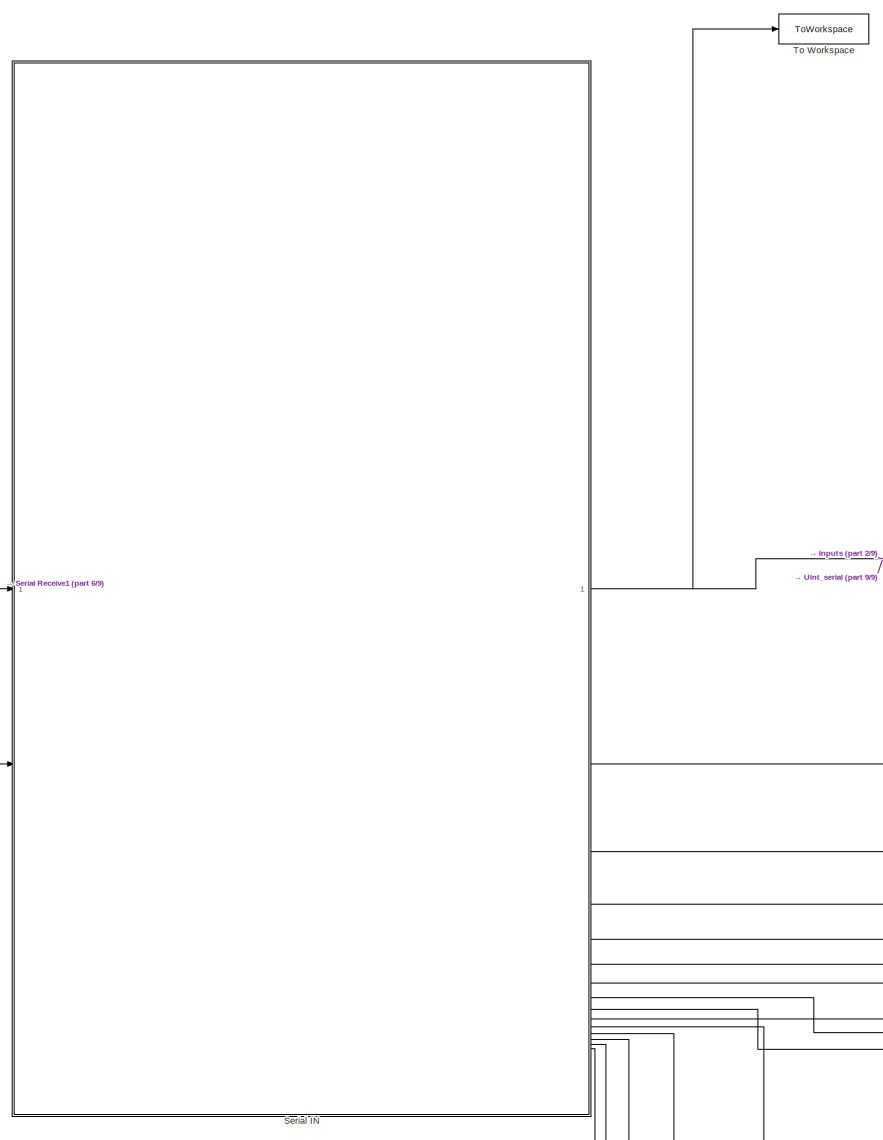
[diagram: root canvas - part 1/9, top left region]
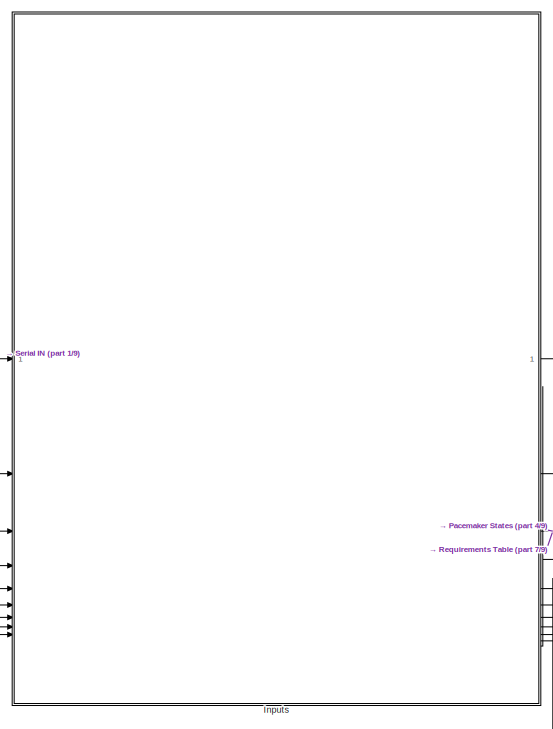
[diagram: root canvas - part 2/9, top center region]
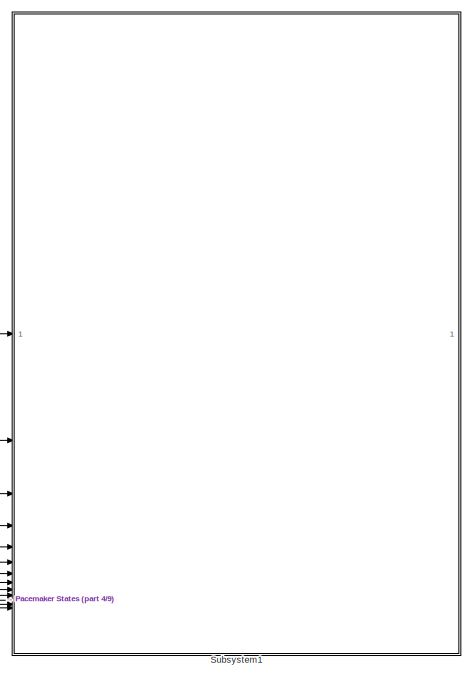
[diagram: root canvas - part 3/9, top right region]
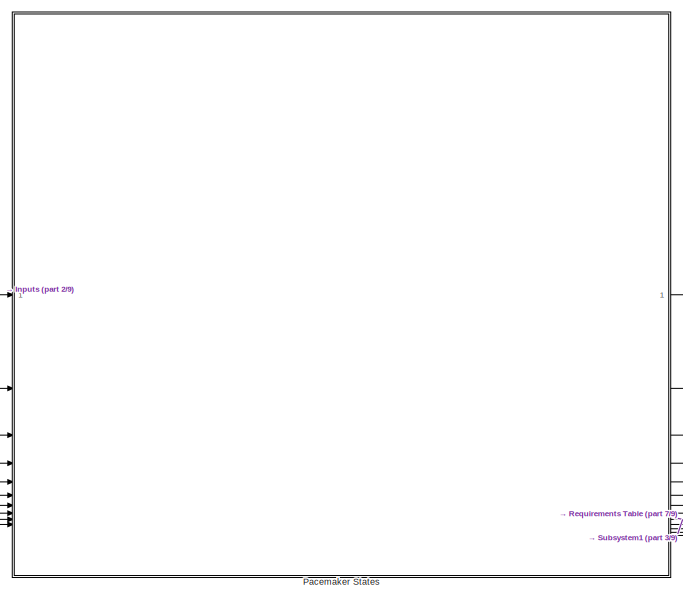
[diagram: root canvas - part 4/9, top center region]
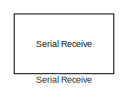
[diagram: root canvas - part 5/9, top left region]
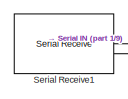
[diagram: root canvas - part 6/9, top left region]
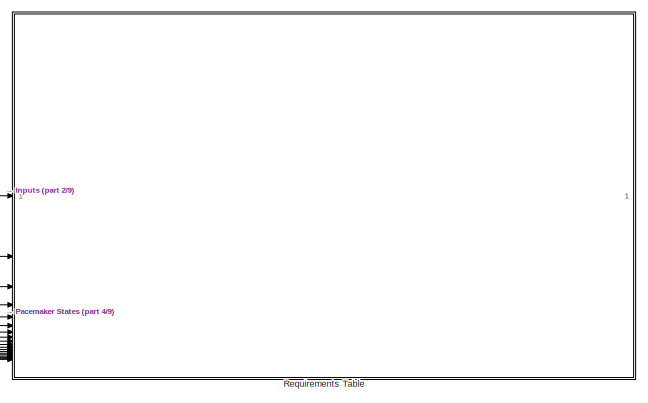
[diagram: root canvas - part 7/9, middle right region]
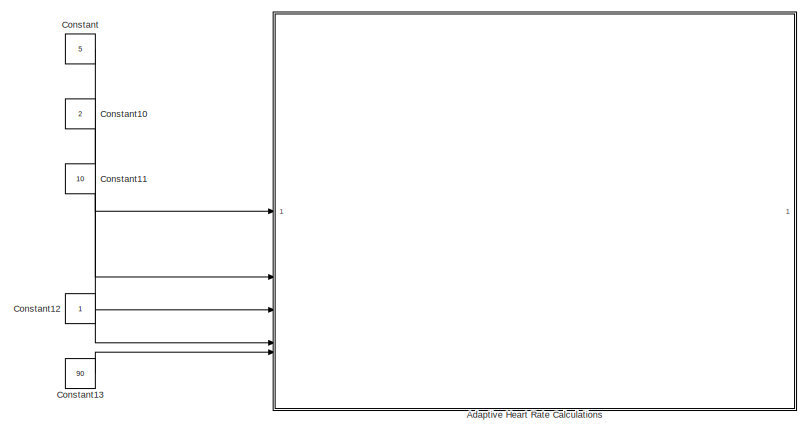
[diagram: root canvas - part 8/9, bottom center region]
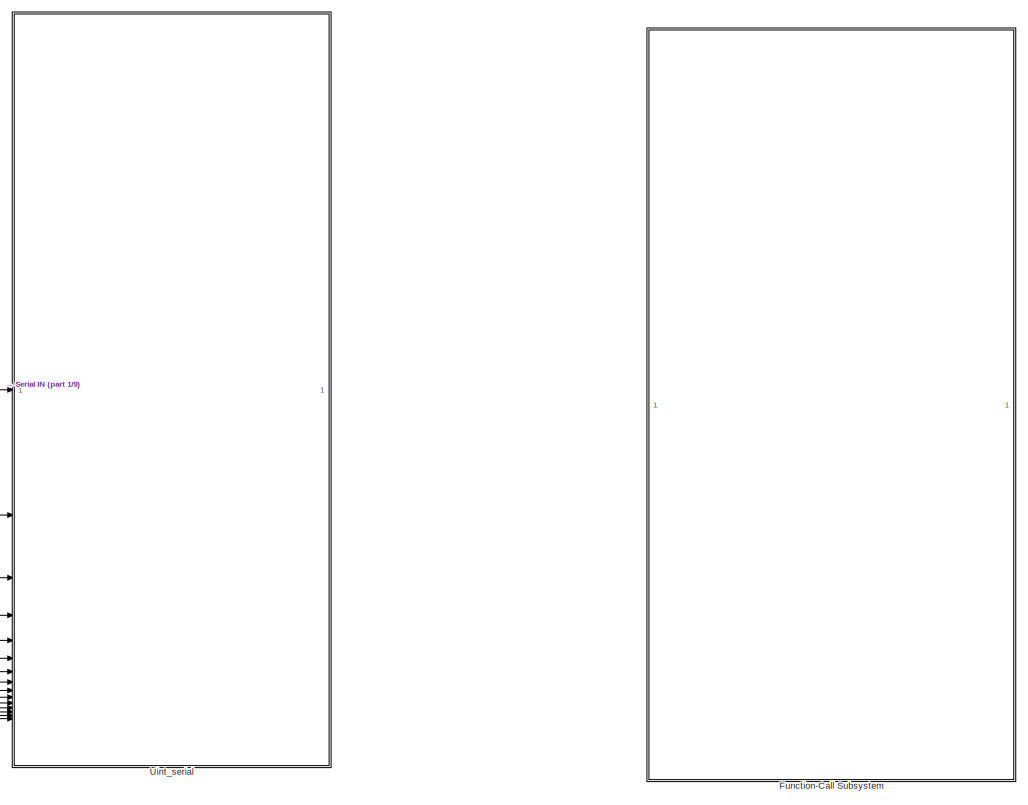
[diagram: root canvas - part 9/9, bottom center region]
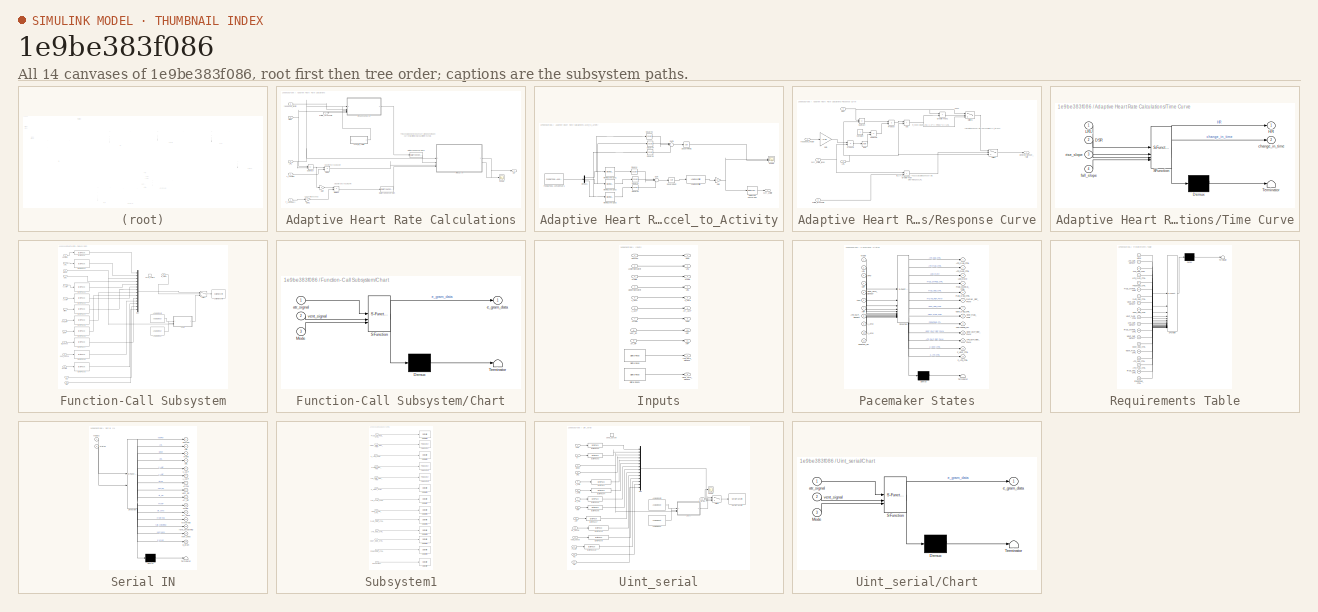
[diagram: thumbnail index - all 14 canvases of the model, root first then tree order]
MODEL slx_1e9be383f086
KIND model
CONFIG AbsTol = auto
CONFIG EnableMultiTasking = on
CONFIG FixedStep = 1e-3
CONFIG MaxStep = auto
CONFIG MinStep = auto
CONFIG RelTol = 1e-3
CONFIG SampleTimeConstraint = Unconstrained
CONFIG SolverName = FixedStepAuto
CONFIG StartTime = 0.0
CONFIG StopTime = 100
BLOCK [SubSystem] Adaptive Heart Rate Calculations
  Commented = on
BLOCK [SubSystem] Adaptive Heart Rate Calculations/Accel_to_Activity
BLOCK [DataTypeConversion] Adaptive Heart Rate Calculations/Accel_to_Activity/Data Type Conversion
  OutDataTypeStr = int16
  RndMeth = Floor
  SaturateOnIntegerOverflow = off
BLOCK [Demux] Adaptive Heart Rate Calculations/Accel_to_Activity/Demux1
  Outputs = 3
BLOCK [Reference] Adaptive Heart Rate Calculations/Accel_to_Activity/FXOS8700 6-Axes Sensor1  REF=frdmk64flib/FXOS8700 6-Axes Sensor
  SourceBlock = frdmk64flib/FXOS8700 6-Axes Sensor
  SourceType = freedomk64f.fxos8700
BLOCK [Gain] Adaptive Heart Rate Calculations/Accel_to_Activity/Gain
  Gain = 10
BLOCK [Reference] Adaptive Heart Rate Calculations/Accel_to_Activity/Lowpass Filter  REF=dspfdesign/Lowpass Filter
  SourceBlock = dspfdesign/Lowpass Filter
  SourceType = dsp.simulink.LowpassFilter
BLOCK [Reference] Adaptive Heart Rate Calculations/Accel_to_Activity/Moving Average1  REF=dspstat3/Moving
Average
  SourceBlock = dspstat3/Moving\nAverage
  SourceType = dsp.simulink.MovingAverage
BLOCK [Reference] Adaptive Heart Rate Calculations/Accel_to_Activity/Moving Average2  REF=dspstat3/Moving
Average
  SourceBlock = dspstat3/Moving\nAverage
  SourceType = dsp.simulink.MovingAverage
BLOCK [Reference] Adaptive Heart Rate Calculations/Accel_to_Activity/Moving Average3  REF=dspstat3/Moving
Average
  SourceBlock = dspstat3/Moving\nAverage
  SourceType = dsp.simulink.MovingAverage
BLOCK [Scope] Adaptive Heart Rate Calculations/Accel_to_Activity/Scope
  Floating = off
  NumInputPorts = 2
  ScopeSpecificationString = Simulink.scopes.TimeScopeBlockCfg('CurrentConfiguration', extmgr.ConfigurationSet(extmgr.Configuration('Core','General UI',true),extmgr.Configuration('Core','Source UI',true),extmgr.Configuration('Sources','WiredSimulink',true),extmgr.Configuration('Visuals','Time Domain',true,'SerializedDisplays',{struct('MinYLimReal','-1.33005','MaxYLimReal','14.10526','YLabelReal','','MinYLimMag','0.00000','Max...<+1362ch>
BLOCK [Math] Adaptive Heart Rate Calculations/Accel_to_Activity/Square
  Operator = square
BLOCK [Sqrt] Adaptive Heart Rate Calculations/Accel_to_Activity/Square Root
BLOCK [Sqrt] Adaptive Heart Rate Calculations/Accel_to_Activity/Square Root1
BLOCK [Math] Adaptive Heart Rate Calculations/Accel_to_Activity/Square1
  Operator = square
BLOCK [Math] Adaptive Heart Rate Calculations/Accel_to_Activity/Square2
  Operator = square
BLOCK [Math] Adaptive Heart Rate Calculations/Accel_to_Activity/Square3
  Operator = square
BLOCK [Math] Adaptive Heart Rate Calculations/Accel_to_Activity/Square4
  Operator = square
BLOCK [Math] Adaptive Heart Rate Calculations/Accel_to_Activity/Square5
  Operator = square
BLOCK [Sum] Adaptive Heart Rate Calculations/Accel_to_Activity/Sum
  Inputs = |+++
BLOCK [Sum] Adaptive Heart Rate Calculations/Accel_to_Activity/Sum1
  Inputs = |+++
BLOCK [Outport] Adaptive Heart Rate Calculations/Accel_to_Activity/curr_activity
  VarSizeSig = No
BLOCK [DataTypeConversion] Adaptive Heart Rate Calculations/Data Type Conversion
  OutDataTypeStr = uint16
  RndMeth = Floor
  SaturateOnIntegerOverflow = off
BLOCK [DataTypeConversion] Adaptive Heart Rate Calculations/Data Type Conversion1
  OutDataTypeStr = uint16
  RndMeth = Floor
  SaturateOnIntegerOverflow = off
BLOCK [Product] Adaptive Heart Rate Calculations/Divide
  Inputs = */
BLOCK [Product] Adaptive Heart Rate Calculations/Divide1
  Inputs = */
BLOCK [Gain] Adaptive Heart Rate Calculations/Gain
  Gain = -1
BLOCK [Gain] Adaptive Heart Rate Calculations/Gain1
  Gain = 60
BLOCK [Outport] Adaptive Heart Rate Calculations/HR
  OutDataTypeStr = uint16
  VarSizeSig = No
BLOCK [Inport] Adaptive Heart Rate Calculations/LRL
  OutDataTypeStr = uint16
  Port = 4
BLOCK [Inport] Adaptive Heart Rate Calculations/MSR
  Port = 6
BLOCK [SubSystem] Adaptive Heart Rate Calculations/Response Curve
BLOCK [Sum] Adaptive Heart Rate Calculations/Response Curve/Add
  IconShape = rectangular
BLOCK [Constant] Adaptive Heart Rate Calculations/Response Curve/Constant
BLOCK [Math] Adaptive Heart Rate Calculations/Response Curve/Exp
BLOCK [Gain] Adaptive Heart Rate Calculations/Response Curve/Gain
  Gain = -1/30
BLOCK [RelationalOperator] Adaptive Heart Rate Calculations/Response Curve/GreaterThan
  InputSameDT = off
  Operator = >
  OutDataTypeStr = boolean
  RndMeth = Simplest
BLOCK [RelationalOperator] Adaptive Heart Rate Calculations/Response Curve/GreaterThan1
  InputSameDT = off
  Operator = >
  OutDataTypeStr = boolean
  RndMeth = Simplest
BLOCK [Inport] Adaptive Heart Rate Calculations/Response Curve/LRL
  OutDataTypeStr = uint16
BLOCK [Inport] Adaptive Heart Rate Calculations/Response Curve/MSR
  OutDataTypeStr = int16
  Port = 4
  VarSizeSig = No
BLOCK [Product] Adaptive Heart Rate Calculations/Response Curve/Product
BLOCK [Product] Adaptive Heart Rate Calculations/Response Curve/Product1
BLOCK [Sum] Adaptive Heart Rate Calculations/Response Curve/Subtract
  IconShape = rectangular
  Inputs = +-
BLOCK [Sum] Adaptive Heart Rate Calculations/Response Curve/Subtract1
  IconShape = rectangular
  Inputs = +-
BLOCK [Switch] Adaptive Heart Rate Calculations/Response Curve/Switch
  Criteria = u2 > Threshold
  InputSameDT = off
  SaturateOnIntegerOverflow = off
BLOCK [Switch] Adaptive Heart Rate Calculations/Response Curve/Switch1
  Criteria = u2 > Threshold
  InputSameDT = off
  SaturateOnIntegerOverflow = off
BLOCK [Inport] Adaptive Heart Rate Calculations/Response Curve/activity_threshold
  OutDataTypeStr = int16
  Port = 5
BLOCK [Inport] Adaptive Heart Rate Calculations/Response Curve/curr_activity_level
  OutDataTypeStr = int16
  Port = 3
  VarSizeSig = No
BLOCK [Outport] Adaptive Heart Rate Calculations/Response Curve/desired_Sensor_rate
  VarSizeSig = No
BLOCK [Inport] Adaptive Heart Rate Calculations/Response Curve/response_Factor
  Port = 2
BLOCK [Scope] Adaptive Heart Rate Calculations/Scope
  Floating = off
  NumInputPorts = 1
  ScopeSpecificationString = Simulink.scopes.TimeScopeBlockCfg('CurrentConfiguration', extmgr.ConfigurationSet(extmgr.Configuration('Core','General UI',true),extmgr.Configuration('Core','Source UI',true),extmgr.Configuration('Sources','WiredSimulink',true,'DataLoggingVariableName','ScopeData1'),extmgr.Configuration('Visuals','Time Domain',true),extmgr.Configuration('Tools','Plot Navigation',true),extmgr.Configuration('Tools',...<+40ch>
BLOCK [Sum] Adaptive Heart Rate Calculations/Subtract
  IconShape = rectangular
  Inputs = +-
BLOCK [Inport] Adaptive Heart Rate Calculations/T_reaction
  OutDataTypeStr = uint16
  Port = 3
  VarSizeSig = No
BLOCK [Inport] Adaptive Heart Rate Calculations/T_recovery
  Port = 2
BLOCK [SubSystem] Adaptive Heart Rate Calculations/Time Curve
  ErrorFcn = Stateflow.Translate.translate
  PermitHierarchicalResolution = ExplicitOnly
  SFBlockType = Chart
  TreatAsAtomicUnit = on
BLOCK [Demux] Adaptive Heart Rate Calculations/Time Curve/ Demux 
  Outputs = 1
BLOCK [S-Function] Adaptive Heart Rate Calculations/Time Curve/ SFunction 
  EnableBusSupport = on
  FunctionName = sf_sfun
  PortCounts = [4 3]
  SFcnIsStateOwnerBlock = off
  SFunctionDeploymentMode = off
  Tag = Stateflow S-Function 2
BLOCK [Terminator] Adaptive Heart Rate Calculations/Time Curve/ Terminator 
BLOCK [Inport] Adaptive Heart Rate Calculations/Time Curve/DSR
  Port = 2
BLOCK [Outport] Adaptive Heart Rate Calculations/Time Curve/HR
BLOCK [Inport] Adaptive Heart Rate Calculations/Time Curve/LRL
BLOCK [Outport] Adaptive Heart Rate Calculations/Time Curve/change_in_time
  Port = 2
BLOCK [Inport] Adaptive Heart Rate Calculations/Time Curve/fall_slope
  Port = 4
BLOCK [Inport] Adaptive Heart Rate Calculations/Time Curve/rise_slope
  Port = 3
BLOCK [Inport] Adaptive Heart Rate Calculations/activity_Threshold
BLOCK [Inport] Adaptive Heart Rate Calculations/response_factor
  Port = 5
BLOCK [Constant] Constant
  Commented = on
  OutDataTypeStr = int16
  Value = 5
BLOCK [Constant] Constant10
  Commented = on
  OutDataTypeStr = int16
  Value = 2
BLOCK [Constant] Constant11
  Commented = on
  OutDataTypeStr = uint16
  Value = 10
BLOCK [Constant] Constant12
  Commented = on
  OutDataTypeStr = double
BLOCK [Constant] Constant13
  Commented = on
  OutDataTypeStr = int16
  Value = 90
BLOCK [SubSystem] Function-Call Subsystem
  Commented = on
  TreatAsAtomicUnit = on
BLOCK [Inport] Function-Call Subsystem/A_AMP
  Port = 6
BLOCK [Reference] Function-Call Subsystem/Analog Input  REF=frdmk64flib/Analog Input
  SourceBlock = frdmk64flib/Analog Input
  SourceType = freedomk64f.AnalogInput
BLOCK [Reference] Function-Call Subsystem/Analog Input1  REF=frdmk64flib/Analog Input
  SourceBlock = frdmk64flib/Analog Input
  SourceType = freedomk64f.AnalogInput
BLOCK [Inport] Function-Call Subsystem/AtrPW
  Port = 7
BLOCK [Inport] Function-Call Subsystem/Atr_RP
  Port = 9
BLOCK [Reference] Function-Call Subsystem/Byte Pack  REF=etargetslib/Byte Pack
  LibrarySourceBlock = embeddedtargetslib/Host Communication/Byte Pack
  SourceBlock = etargetslib/Byte Pack
  SourceType = Byte pack
BLOCK [Reference] Function-Call Subsystem/Byte Pack1  REF=etargetslib/Byte Pack
  LibrarySourceBlock = embeddedtargetslib/Host Communication/Byte Pack
  SourceBlock = etargetslib/Byte Pack
  SourceType = Byte pack
BLOCK [Reference] Function-Call Subsystem/Byte Pack2  REF=etargetslib/Byte Pack
  LibrarySourceBlock = embeddedtargetslib/Host Communication/Byte Pack
  SourceBlock = etargetslib/Byte Pack
  SourceType = Byte pack
BLOCK [Reference] Function-Call Subsystem/Byte Pack3  REF=etargetslib/Byte Pack
  LibrarySourceBlock = embeddedtargetslib/Host Communication/Byte Pack
  SourceBlock = etargetslib/Byte Pack
  SourceType = Byte pack
BLOCK [Reference] Function-Call Subsystem/Byte Pack4  REF=etargetslib/Byte Pack
  LibrarySourceBlock = embeddedtargetslib/Host Communication/Byte Pack
  SourceBlock = etargetslib/Byte Pack
  SourceType = Byte pack
BLOCK [Reference] Function-Call Subsystem/Byte Pack5  REF=etargetslib/Byte Pack
  LibrarySourceBlock = embeddedtargetslib/Host Communication/Byte Pack
  SourceBlock = etargetslib/Byte Pack
  SourceType = Byte pack
BLOCK [Reference] Function-Call Subsystem/Byte Pack6  REF=etargetslib/Byte Pack
  LibrarySourceBlock = embeddedtargetslib/Host Communication/Byte Pack
  SourceBlock = etargetslib/Byte Pack
  SourceType = Byte pack
BLOCK [Reference] Function-Call Subsystem/Byte Pack7  REF=etargetslib/Byte Pack
  LibrarySourceBlock = embeddedtargetslib/Host Communication/Byte Pack
  SourceBlock = etargetslib/Byte Pack
  SourceType = Byte pack
BLOCK [Reference] Function-Call Subsystem/Byte Pack8  REF=etargetslib/Byte Pack
  LibrarySourceBlock = embeddedtargetslib/Host Communication/Byte Pack
  SourceBlock = etargetslib/Byte Pack
  SourceType = Byte pack
BLOCK [Reference] Function-Call Subsystem/Byte Pack9  REF=etargetslib/Byte Pack
  LibrarySourceBlock = embeddedtargetslib/Host Communication/Byte Pack
  SourceBlock = etargetslib/Byte Pack
  SourceType = Byte pack
BLOCK [SubSystem] Function-Call Subsystem/Chart
  ErrorFcn = Stateflow.Translate.translate
  PermitHierarchicalResolution = ExplicitOnly
  SFBlockType = Chart
  TreatAsAtomicUnit = on
BLOCK [Demux] Function-Call Subsystem/Chart/ Demux 
  Outputs = 1
BLOCK [S-Function] Function-Call Subsystem/Chart/ SFunction 
  EnableBusSupport = on
  FunctionName = sf_sfun
  PortCounts = [3 2]
  SFcnIsStateOwnerBlock = off
  SFunctionDeploymentMode = off
  Tag = Stateflow S-Function 4
BLOCK [Terminator] Function-Call Subsystem/Chart/ Terminator 
BLOCK [Inport] Function-Call Subsystem/Chart/Mode
  Port = 3
BLOCK [Inport] Function-Call Subsystem/Chart/atr_signal
BLOCK [Outport] Function-Call Subsystem/Chart/e_gram_data
BLOCK [Inport] Function-Call Subsystem/Chart/vent_signal
  Port = 2
BLOCK [Inport] Function-Call Subsystem/E_gram
  OutDataTypeStr = boolean
  Port = 15
BLOCK [Inport] Function-Call Subsystem/HS
  Port = 14
BLOCK [Inport] Function-Call Subsystem/LRL
  Port = 2
BLOCK [Inport] Function-Call Subsystem/Mode
  Port = 3
BLOCK [Mux] Function-Call Subsystem/Mux
  DisplayOption = bar
  Inputs = 14
BLOCK [Inport] Function-Call Subsystem/PVARP
  Port = 12
BLOCK [Inport] Function-Call Subsystem/RS
  Port = 13
BLOCK [Reference] Function-Call Subsystem/Serial Transmit  REF=frdmk64flib/Serial Transmit
  SourceBlock = frdmk64flib/Serial Transmit
  SourceType = freedomk64f.SCIWrite
BLOCK [Switch] Function-Call Subsystem/Switch
  Criteria = u2 > Threshold
  InputSameDT = off
  SaturateOnIntegerOverflow = off
BLOCK [Inport] Function-Call Subsystem/URL
  Port = 4
BLOCK [Inport] Function-Call Subsystem/V_AMP
  Port = 5
BLOCK [Inport] Function-Call Subsystem/VentPW
BLOCK [Inport] Function-Call Subsystem/Vent_RP
  Port = 8
BLOCK [Inport] Function-Call Subsystem/atr_sense
  Port = 10
BLOCK [TriggerPort] Function-Call Subsystem/send_param
  FunctionName = send_param
  IsSimulinkFunction = on
  StatesWhenEnabling = held
  TriggerType = function-call
  VariantControl = (inherit)
BLOCK [Inport] Function-Call Subsystem/vent_sense
  Port = 11
BLOCK [SubSystem] Inputs
BLOCK [Outport] Inputs/APW
  OutDataTypeStr = uint16
  Port = 8
BLOCK [Outport] Inputs/ARP
  OutDataTypeStr = uint16
  Port = 11
BLOCK [Outport] Inputs/ATR_CMP_DETECT
  OutDataTypeStr = boolean
  Port = 7
BLOCK [Inport] Inputs/A_AMP
  OutDataTypeStr = single
  Port = 6
BLOCK [Inport] Inputs/AtrPW
  OutDataTypeStr = uint16
  Port = 7
BLOCK [Outport] Inputs/Atr_AMP
  OutDataTypeStr = single
  Port = 6
BLOCK [Inport] Inputs/Atr_RP
  OutDataTypeStr = uint16
  Port = 9
BLOCK [Reference] Inputs/Digital Read  REF=frdmk64flib/Digital Read
  SourceBlock = frdmk64flib/Digital Read
  SourceType = freedomk64f.DigitalRead
BLOCK [Reference] Inputs/Digital Read1  REF=frdmk64flib/Digital Read
  SourceBlock = frdmk64flib/Digital Read
  SourceType = freedomk64f.DigitalRead
BLOCK [Outport] Inputs/LRL
  OutDataTypeStr = uint16
  Port = 2
BLOCK [Inport] Inputs/LowerRateLimit
  OutDataTypeStr = uint16
  Port = 2
BLOCK [Inport] Inputs/MODE
  OutDataTypeStr = uint8
  Port = 3
BLOCK [Outport] Inputs/Mode
  OutDataTypeStr = uint8
  Port = 3
BLOCK [Outport] Inputs/URL
  OutDataTypeStr = uint8
  Port = 4
BLOCK [Inport] Inputs/UpperRateLimit
  OutDataTypeStr = uint8
  Port = 4
BLOCK [Outport] Inputs/VENT_CMP_DETECT
  OutDataTypeStr = boolean
  Port = 9
BLOCK [Outport] Inputs/VPW
  OutDataTypeStr = uint16
BLOCK [Outport] Inputs/VRP
  OutDataTypeStr = uint16
  Port = 10
BLOCK [Inport] Inputs/V_AMP
  OutDataTypeStr = single
  Port = 5
BLOCK [Outport] Inputs/V_Amp
  OutDataTypeStr = single
  Port = 5
BLOCK [Inport] Inputs/VentPW
  OutDataTypeStr = uint16
BLOCK [Inport] Inputs/Vent_RP
  OutDataTypeStr = uint16
  Port = 8
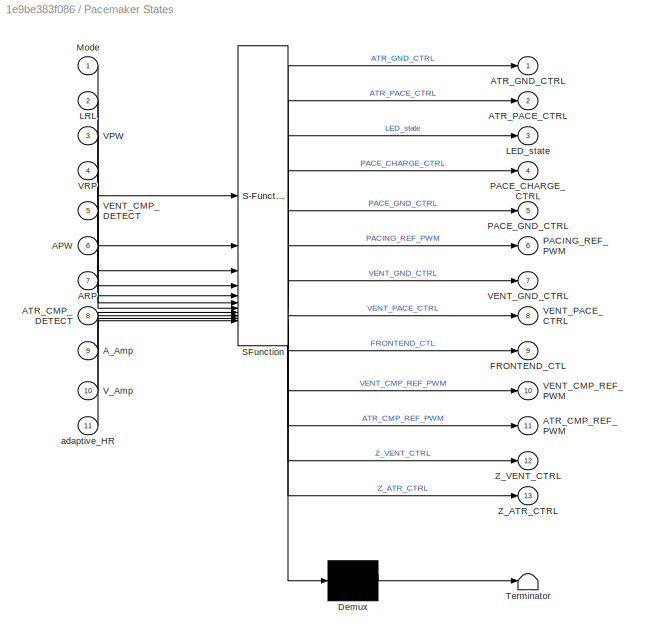
BLOCK [SubSystem] Pacemaker States
  ErrorFcn = Stateflow.Translate.translate
  PermitHierarchicalResolution = ExplicitOnly
  SFBlockType = Chart
  TreatAsAtomicUnit = on
BLOCK [Demux] Pacemaker States/ Demux 
  Outputs = 1
BLOCK [S-Function] Pacemaker States/ SFunction 
  EnableBusSupport = on
  FunctionName = sf_sfun
  PortCounts = [11 14]
  SFcnIsStateOwnerBlock = off
  SFunctionDeploymentMode = off
  Tag = Stateflow S-Function 6
BLOCK [Terminator] Pacemaker States/ Terminator 
BLOCK [Inport] Pacemaker States/APW
  Port = 6
BLOCK [Inport] Pacemaker States/ARP
  Port = 7
BLOCK [Inport] Pacemaker States/ATR_CMP_DETECT
  Port = 8
BLOCK [Outport] Pacemaker States/ATR_CMP_REF_PWM
  Port = 11
BLOCK [Outport] Pacemaker States/ATR_GND_CTRL
BLOCK [Outport] Pacemaker States/ATR_PACE_CTRL
  Port = 2
BLOCK [Inport] Pacemaker States/A_Amp
  Port = 9
BLOCK [Outport] Pacemaker States/FRONTEND_CTL
  Port = 9
BLOCK [Outport] Pacemaker States/LED_state
  Port = 3
BLOCK [Inport] Pacemaker States/LRL
  Port = 2
BLOCK [Inport] Pacemaker States/Mode
BLOCK [Outport] Pacemaker States/PACE_CHARGE_CTRL
  Port = 4
BLOCK [Outport] Pacemaker States/PACE_GND_CTRL
  Port = 5
BLOCK [Outport] Pacemaker States/PACING_REF_PWM
  Port = 6
BLOCK [Inport] Pacemaker States/VENT_CMP_DETECT
  Port = 5
BLOCK [Outport] Pacemaker States/VENT_CMP_REF_PWM
  Port = 10
BLOCK [Outport] Pacemaker States/VENT_GND_CTRL
  Port = 7
BLOCK [Outport] Pacemaker States/VENT_PACE_CTRL
  Port = 8
BLOCK [Inport] Pacemaker States/VPW
  Port = 3
BLOCK [Inport] Pacemaker States/VRP
  Port = 4
BLOCK [Inport] Pacemaker States/V_Amp
  Port = 10
BLOCK [Outport] Pacemaker States/Z_ATR_CTRL
  Port = 13
BLOCK [Outport] Pacemaker States/Z_VENT_CTRL
  Port = 12
BLOCK [Inport] Pacemaker States/adaptive_HR
  Port = 11
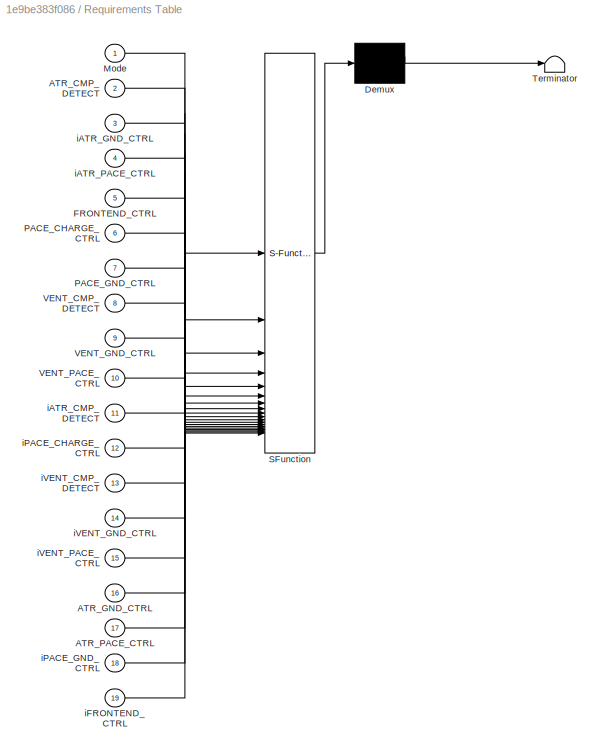
BLOCK [SubSystem] Requirements Table
  ErrorFcn = Stateflow.Translate.translate
  PermitHierarchicalResolution = ExplicitOnly
  SFBlockType = Requirements Table
  TreatAsAtomicUnit = on
BLOCK [Demux] Requirements Table/ Demux 
  Outputs = 1
BLOCK [S-Function] Requirements Table/ SFunction 
  EnableBusSupport = on
  FunctionName = sf_sfun
  PortCounts = [19 1]
  SFcnIsStateOwnerBlock = off
  SFunctionDeploymentMode = off
  Tag = Stateflow S-Function 3
BLOCK [Terminator] Requirements Table/ Terminator 
BLOCK [Inport] Requirements Table/ATR_CMP_DETECT
  Port = 2
BLOCK [Inport] Requirements Table/ATR_GND_CTRL
  Port = 16
BLOCK [Inport] Requirements Table/ATR_PACE_CTRL
  Port = 17
BLOCK [Inport] Requirements Table/FRONTEND_CTRL
  Port = 5
BLOCK [Inport] Requirements Table/Mode
BLOCK [Inport] Requirements Table/PACE_CHARGE_CTRL
  Port = 6
BLOCK [Inport] Requirements Table/PACE_GND_CTRL
  Port = 7
BLOCK [Inport] Requirements Table/VENT_CMP_DETECT
  Port = 8
BLOCK [Inport] Requirements Table/VENT_GND_CTRL
  Port = 9
BLOCK [Inport] Requirements Table/VENT_PACE_CTRL
  Port = 10
BLOCK [Inport] Requirements Table/iATR_CMP_DETECT
  Port = 11
BLOCK [Inport] Requirements Table/iATR_GND_CTRL
  Port = 3
BLOCK [Inport] Requirements Table/iATR_PACE_CTRL
  Port = 4
BLOCK [Inport] Requirements Table/iFRONTEND_CTRL
  Port = 19
BLOCK [Inport] Requirements Table/iPACE_CHARGE_CTRL
  Port = 12
BLOCK [Inport] Requirements Table/iPACE_GND_CTRL
  Port = 18
BLOCK [Inport] Requirements Table/iVENT_CMP_DETECT
  Port = 13
BLOCK [Inport] Requirements Table/iVENT_GND_CTRL
  Port = 14
BLOCK [Inport] Requirements Table/iVENT_PACE_CTRL
  Port = 15
BLOCK [SubSystem] Serial IN
  ErrorFcn = Stateflow.Translate.translate
  PermitHierarchicalResolution = ExplicitOnly
  SFBlockType = Chart
  TreatAsAtomicUnit = on
BLOCK [Demux] Serial IN/ Demux 
  Outputs = 1
BLOCK [S-Function] Serial IN/ SFunction 
  EnableBusSupport = on
  FunctionName = sf_sfun
  PortCounts = [2 16]
  SFcnIsStateOwnerBlock = off
  SFunctionDeploymentMode = off
  Tag = Stateflow S-Function 1
BLOCK [Terminator] Serial IN/ Terminator 
BLOCK [Outport] Serial IN/A_AMP
  Port = 6
BLOCK [Outport] Serial IN/AtrPW
  Port = 7
BLOCK [Outport] Serial IN/Atr_RP
  Port = 9
BLOCK [Outport] Serial IN/E_gram
  Port = 15
BLOCK [Outport] Serial IN/LRL
  Port = 2
BLOCK [Outport] Serial IN/Mode
  Port = 3
BLOCK [Outport] Serial IN/PVARP
  Port = 10
BLOCK [Outport] Serial IN/URL
  Port = 4
BLOCK [Outport] Serial IN/V_AMP
  Port = 5
BLOCK [Outport] Serial IN/VentPW
BLOCK [Outport] Serial IN/Vent_RP
  Port = 8
BLOCK [Outport] Serial IN/atr_sens
  Port = 11
BLOCK [Outport] Serial IN/hysteresis
  Port = 12
BLOCK [Outport] Serial IN/rate_smoothing
  Port = 13
BLOCK [Inport] Serial IN/rxdata
BLOCK [Inport] Serial IN/status
  Port = 2
BLOCK [Outport] Serial IN/vent_sens
  Port = 14
BLOCK [Reference] Serial Receive  REF=frdmk64flib/Serial Receive
  Commented = on
  SourceBlock = frdmk64flib/Serial Receive
  SourceType = freedomk64f.SCIRead
BLOCK [Reference] Serial Receive1  REF=frdmk64flib/Serial Receive
  SourceBlock = frdmk64flib/Serial Receive
  SourceType = freedomk64f.SCIRead
BLOCK [SubSystem] Subsystem1
BLOCK [Inport] Subsystem1/ATR_CMP_REF_PWM
  OutDataTypeStr = double
  Port = 5
BLOCK [Inport] Subsystem1/ATR_GND_CTRL
  OutDataTypeStr = boolean
  Port = 10
BLOCK [Inport] Subsystem1/ATR_PACE_CTRL
  OutDataTypeStr = boolean
  Port = 7
BLOCK [Inport] Subsystem1/Debug Light
  OutDataTypeStr = boolean
  Port = 13
BLOCK [Reference] Subsystem1/Digital Write  REF=frdmk64flib/Digital Write
  SourceBlock = frdmk64flib/Digital Write
  SourceType = freedomk64f.DigitalWrite
BLOCK [Reference] Subsystem1/Digital Write1  REF=frdmk64flib/Digital Write
  SourceBlock = frdmk64flib/Digital Write
  SourceType = freedomk64f.DigitalWrite
BLOCK [Reference] Subsystem1/Digital Write2  REF=frdmk64flib/Digital Write
  SourceBlock = frdmk64flib/Digital Write
  SourceType = freedomk64f.DigitalWrite
BLOCK [Reference] Subsystem1/Digital Write3  REF=frdmk64flib/Digital Write
  SourceBlock = frdmk64flib/Digital Write
  SourceType = freedomk64f.DigitalWrite
BLOCK [Reference] Subsystem1/Digital Write4  REF=frdmk64flib/Digital Write
  SourceBlock = frdmk64flib/Digital Write
  SourceType = freedomk64f.DigitalWrite
BLOCK [Reference] Subsystem1/Digital Write5  REF=frdmk64flib/Digital Write
  SourceBlock = frdmk64flib/Digital Write
  SourceType = freedomk64f.DigitalWrite
BLOCK [Reference] Subsystem1/Digital Write6  REF=frdmk64flib/Digital Write
  SourceBlock = frdmk64flib/Digital Write
  SourceType = freedomk64f.DigitalWrite
BLOCK [Reference] Subsystem1/Digital Write7  REF=frdmk64flib/Digital Write
  SourceBlock = frdmk64flib/Digital Write
  SourceType = freedomk64f.DigitalWrite
BLOCK [Reference] Subsystem1/Digital Write8  REF=frdmk64flib/Digital Write
  SourceBlock = frdmk64flib/Digital Write
  SourceType = freedomk64f.DigitalWrite
BLOCK [Reference] Subsystem1/Digital Write9  REF=frdmk64flib/Digital Write
  SourceBlock = frdmk64flib/Digital Write
  SourceType = freedomk64f.DigitalWrite
BLOCK [Inport] Subsystem1/FRONTEND_CTRL
  OutDataTypeStr = boolean
  Port = 12
BLOCK [Inport] Subsystem1/PACE_CHARGE_CTRL
  OutDataTypeStr = boolean
BLOCK [Inport] Subsystem1/PACE_GND_CTRL
  OutDataTypeStr = boolean
  Port = 9
BLOCK [Inport] Subsystem1/PACING_REF_PWM
  OutDataTypeStr = single
  Port = 4
BLOCK [Reference] Subsystem1/PWM Output  REF=frdmk64flib/PWM Output
  SourceBlock = frdmk64flib/PWM Output
  SourceType = freedomk64f.PWMOutput
BLOCK [Reference] Subsystem1/PWM Output1  REF=frdmk64flib/PWM Output
  SourceBlock = frdmk64flib/PWM Output
  SourceType = freedomk64f.PWMOutput
BLOCK [Reference] Subsystem1/PWM Output2  REF=frdmk64flib/PWM Output
  SourceBlock = frdmk64flib/PWM Output
  SourceType = freedomk64f.PWMOutput
BLOCK [Inport] Subsystem1/VENT_CMP_REF_PWM
  OutDataTypeStr = double
  Port = 2
BLOCK [Inport] Subsystem1/VENT_GND_CTRL
  OutDataTypeStr = boolean
  Port = 11
BLOCK [Inport] Subsystem1/VENT_PACE_CTRL
  OutDataTypeStr = boolean
  Port = 8
BLOCK [Inport] Subsystem1/Z_ATR_CTRL
  OutDataTypeStr = boolean
  Port = 3
BLOCK [Inport] Subsystem1/Z_VENT_CTRL
  OutDataTypeStr = boolean
  Port = 6
BLOCK [ToWorkspace] To Workspace
  FixptAsFi = on
  MaxDataPoints = inf
  SampleTime = -1
  SaveFormat = Timeseries
  VariableName = VPW
BLOCK [SubSystem] Uint_serial
  TreatAsAtomicUnit = on
BLOCK [Inport] Uint_serial/ARP
  Port = 9
BLOCK [Inport] Uint_serial/A_amp
  Port = 6
BLOCK [Reference] Uint_serial/Analog Input  REF=frdmk64flib/Analog Input
  SourceBlock = frdmk64flib/Analog Input
  SourceType = freedomk64f.AnalogInput
BLOCK [Reference] Uint_serial/Analog Input1  REF=frdmk64flib/Analog Input
  SourceBlock = frdmk64flib/Analog Input
  SourceType = freedomk64f.AnalogInput
BLOCK [Inport] Uint_serial/Atr_PW
  Port = 7
BLOCK [Reference] Uint_serial/Byte Pack  REF=etargetslib/Byte Pack
  SourceBlock = etargetslib/Byte Pack
  SourceType = Byte pack
BLOCK [Reference] Uint_serial/Byte Pack10  REF=etargetslib/Byte Pack
  LibrarySourceBlock = embeddedtargetslib/Host Communication/Byte Pack
  SourceBlock = etargetslib/Byte Pack
  SourceType = Byte pack
BLOCK [Reference] Uint_serial/Byte Pack2  REF=etargetslib/Byte Pack
  LibrarySourceBlock = embeddedtargetslib/Host Communication/Byte Pack
  SourceBlock = etargetslib/Byte Pack
  SourceType = Byte pack
BLOCK [Reference] Uint_serial/Byte Pack3  REF=etargetslib/Byte Pack
  LibrarySourceBlock = embeddedtargetslib/Host Communication/Byte Pack
  SourceBlock = etargetslib/Byte Pack
  SourceType = Byte pack
BLOCK [Reference] Uint_serial/Byte Pack4  REF=etargetslib/Byte Pack
  SourceBlock = etargetslib/Byte Pack
  SourceType = Byte pack
BLOCK [Reference] Uint_serial/Byte Pack5  REF=etargetslib/Byte Pack
  LibrarySourceBlock = embeddedtargetslib/Host Communication/Byte Pack
  SourceBlock = etargetslib/Byte Pack
  SourceType = Byte pack
BLOCK [Reference] Uint_serial/Byte Pack6  REF=etargetslib/Byte Pack
  LibrarySourceBlock = embeddedtargetslib/Host Communication/Byte Pack
  SourceBlock = etargetslib/Byte Pack
  SourceType = Byte pack
BLOCK [Reference] Uint_serial/Byte Pack7  REF=etargetslib/Byte Pack
  LibrarySourceBlock = embeddedtargetslib/Host Communication/Byte Pack
  SourceBlock = etargetslib/Byte Pack
  SourceType = Byte pack
BLOCK [Reference] Uint_serial/Byte Pack8  REF=etargetslib/Byte Pack
  SourceBlock = etargetslib/Byte Pack
  SourceType = Byte pack
BLOCK [Reference] Uint_serial/Byte Pack9  REF=etargetslib/Byte Pack
  SourceBlock = etargetslib/Byte Pack
  SourceType = Byte pack
BLOCK [SubSystem] Uint_serial/Chart
  ErrorFcn = Stateflow.Translate.translate
  PermitHierarchicalResolution = ExplicitOnly
  SFBlockType = Chart
  TreatAsAtomicUnit = on
BLOCK [Demux] Uint_serial/Chart/ Demux 
  Outputs = 1
BLOCK [S-Function] Uint_serial/Chart/ SFunction 
  EnableBusSupport = on
  FunctionName = sf_sfun
  PortCounts = [3 2]
  SFcnIsStateOwnerBlock = off
  SFunctionDeploymentMode = off
  Tag = Stateflow S-Function 5
BLOCK [Terminator] Uint_serial/Chart/ Terminator 
BLOCK [Inport] Uint_serial/Chart/Mode
  Port = 3
BLOCK [Inport] Uint_serial/Chart/atr_signal
BLOCK [Outport] Uint_serial/Chart/e_gram_data
BLOCK [Inport] Uint_serial/Chart/vent_signal
  Port = 2
BLOCK [Inport] Uint_serial/E_gram
  OutDataTypeStr = boolean
  Port = 15
BLOCK [Inport] Uint_serial/HS
  Port = 14
BLOCK [Inport] Uint_serial/Mode
  Port = 3
BLOCK [Mux] Uint_serial/Mux
  DisplayOption = bar
  Inputs = 14
BLOCK [Inport] Uint_serial/PVARP
  Port = 12
BLOCK [Inport] Uint_serial/RS
  Port = 13
BLOCK [Scope] Uint_serial/Scope
  Floating = off
  NumInputPorts = 1
  ScopeSpecificationString = Simulink.scopes.TimeScopeBlockCfg('CurrentConfiguration', extmgr.ConfigurationSet(extmgr.Configuration('Core','General UI',true),extmgr.Configuration('Core','Source UI',true),extmgr.Configuration('Sources','WiredSimulink',true,'DataLoggingVariableName','ScopeData1'),extmgr.Configuration('Visuals','Time Domain',true),extmgr.Configuration('Tools','Plot Navigation',true),extmgr.Configuration('Tools',...<+58ch>
BLOCK [Reference] Uint_serial/Serial Transmit  REF=frdmk64flib/Serial Transmit
  SourceBlock = frdmk64flib/Serial Transmit
  SourceType = freedomk64f.SCIWrite
BLOCK [Switch] Uint_serial/Switch
  Criteria = u2 > Threshold
  InputSameDT = off
  SaturateOnIntegerOverflow = off
BLOCK [Inport] Uint_serial/URL
  Port = 4
BLOCK [Inport] Uint_serial/VRP
  Port = 8
BLOCK [Inport] Uint_serial/V_amp
  Port = 5
BLOCK [Inport] Uint_serial/atr_sense
  Port = 10
BLOCK [Inport] Uint_serial/lrl
  Port = 2
BLOCK [TriggerPort] Uint_serial/send_param
  FunctionName = send_param
  IsSimulinkFunction = on
  StatesWhenEnabling = held
  TriggerType = function-call
  VariantControl = (inherit)
BLOCK [Inport] Uint_serial/vent_sense
  Port = 11
BLOCK [Inport] Uint_serial/vpw
ANNOTATION Adaptive Heart Rate Calculations: This should be desired sensor rate depending on current activity level and activity threshold.
ANNOTATION Adaptive Heart Rate Calculations: convert to seconds
ANNOTATION Adaptive Heart Rate Calculations: slope for decreasing HR
ANNOTATION Adaptive Heart Rate Calculations: slope for increasing HR
ANNOTATION Adaptive Heart Rate Calculations/Response Curve: MSDR
ANNOTATION Adaptive Heart Rate Calculations/Response Curve: R_new = (MSDR-LRL)(1-e^((-RF/30)*x)) + LRL
ANNOTATION Adaptive Heart Rate Calculations/Response Curve: calculated sensor rate (only used if C.AL > A_thresh)
ANNOTATION Adaptive Heart Rate Calculations/Response Curve: if C.AL > A_threshold --> pass calculated sensor rate. Otherwise, pass LRL
LINE Adaptive Heart Rate Calculations/Accel_to_Activity/Data Type Conversion:1 -> Adaptive Heart Rate Calculations/Accel_to_Activity/curr_activity:1
NET Adaptive Heart Rate Calculations/Accel_to_Activity/Demux1:1 -> Adaptive Heart Rate Calculations/Accel_to_Activity/Moving Average1:1, Adaptive Heart Rate Calculations/Accel_to_Activity/Square3:1
NET Adaptive Heart Rate Calculations/Accel_to_Activity/Demux1:2 -> Adaptive Heart Rate Calculations/Accel_to_Activity/Moving Average2:1, Adaptive Heart Rate Calculations/Accel_to_Activity/Square4:1
NET Adaptive Heart Rate Calculations/Accel_to_Activity/Demux1:3 -> Adaptive Heart Rate Calculations/Accel_to_Activity/Moving Average3:1, Adaptive Heart Rate Calculations/Accel_to_Activity/Square5:1
LINE Adaptive Heart Rate Calculations/Accel_to_Activity/FXOS8700 6-Axes Sensor1:1 -> Adaptive Heart Rate Calculations/Accel_to_Activity/Demux1:1
NET Adaptive Heart Rate Calculations/Accel_to_Activity/Gain:1 -> Adaptive Heart Rate Calculations/Accel_to_Activity/Data Type Conversion:1, Adaptive Heart Rate Calculations/Accel_to_Activity/Scope:1
LINE Adaptive Heart Rate Calculations/Accel_to_Activity/Lowpass Filter:1 -> Adaptive Heart Rate Calculations/Accel_to_Activity/Gain:1
LINE Adaptive Heart Rate Calculations/Accel_to_Activity/Moving Average1:1 -> Adaptive Heart Rate Calculations/Accel_to_Activity/Square:1
LINE Adaptive Heart Rate Calculations/Accel_to_Activity/Moving Average2:1 -> Adaptive Heart Rate Calculations/Accel_to_Activity/Square1:1
LINE Adaptive Heart Rate Calculations/Accel_to_Activity/Moving Average3:1 -> Adaptive Heart Rate Calculations/Accel_to_Activity/Square2:1
LINE Adaptive Heart Rate Calculations/Accel_to_Activity/Square Root1:1 -> Adaptive Heart Rate Calculations/Accel_to_Activity/Scope:2
LINE Adaptive Heart Rate Calculations/Accel_to_Activity/Square Root:1 -> Adaptive Heart Rate Calculations/Accel_to_Activity/Lowpass Filter:1
LINE Adaptive Heart Rate Calculations/Accel_to_Activity/Square1:1 -> Adaptive Heart Rate Calculations/Accel_to_Activity/Sum:2
LINE Adaptive Heart Rate Calculations/Accel_to_Activity/Square2:1 -> Adaptive Heart Rate Calculations/Accel_to_Activity/Sum:3
LINE Adaptive Heart Rate Calculations/Accel_to_Activity/Square3:1 -> Adaptive Heart Rate Calculations/Accel_to_Activity/Sum1:1
LINE Adaptive Heart Rate Calculations/Accel_to_Activity/Square4:1 -> Adaptive Heart Rate Calculations/Accel_to_Activity/Sum1:2
LINE Adaptive Heart Rate Calculations/Accel_to_Activity/Square5:1 -> Adaptive Heart Rate Calculations/Accel_to_Activity/Sum1:3
LINE Adaptive Heart Rate Calculations/Accel_to_Activity/Square:1 -> Adaptive Heart Rate Calculations/Accel_to_Activity/Sum:1
LINE Adaptive Heart Rate Calculations/Accel_to_Activity/Sum1:1 -> Adaptive Heart Rate Calculations/Accel_to_Activity/Square Root1:1
LINE Adaptive Heart Rate Calculations/Accel_to_Activity/Sum:1 -> Adaptive Heart Rate Calculations/Accel_to_Activity/Square Root:1
LINE Adaptive Heart Rate Calculations/Accel_to_Activity:1 -> Adaptive Heart Rate Calculations/Response Curve:3
LINE Adaptive Heart Rate Calculations/Data Type Conversion1:1 -> Adaptive Heart Rate Calculations/Time Curve:2
LINE Adaptive Heart Rate Calculations/Data Type Conversion:1 -> Adaptive Heart Rate Calculations/Time Curve:4
LINE Adaptive Heart Rate Calculations/Divide1:1 -> Adaptive Heart Rate Calculations/Data Type Conversion:1
LINE Adaptive Heart Rate Calculations/Divide:1 -> Adaptive Heart Rate Calculations/Time Curve:3
LINE Adaptive Heart Rate Calculations/Gain1:1 -> Adaptive Heart Rate Calculations/Divide1:2
LINE Adaptive Heart Rate Calculations/Gain:1 -> Adaptive Heart Rate Calculations/Divide1:1
NET Adaptive Heart Rate Calculations/LRL:1 -> Adaptive Heart Rate Calculations/Response Curve:1, Adaptive Heart Rate Calculations/Subtract:2, Adaptive Heart Rate Calculations/Time Curve:1
NET Adaptive Heart Rate Calculations/MSR:1 -> Adaptive Heart Rate Calculations/Response Curve:4, Adaptive Heart Rate Calculations/Subtract:1
NET Adaptive Heart Rate Calculations/Response Curve/Add:1 -> Adaptive Heart Rate Calculations/Response Curve/GreaterThan1:2, Adaptive Heart Rate Calculations/Response Curve/Switch1:3
LINE Adaptive Heart Rate Calculations/Response Curve/Constant:1 -> Adaptive Heart Rate Calculations/Response Curve/Subtract1:1
LINE Adaptive Heart Rate Calculations/Response Curve/Exp:1 -> Adaptive Heart Rate Calculations/Response Curve/Subtract1:2
LINE Adaptive Heart Rate Calculations/Response Curve/Gain:1 -> Adaptive Heart Rate Calculations/Response Curve/Product1:1
LINE Adaptive Heart Rate Calculations/Response Curve/GreaterThan1:1 -> Adaptive Heart Rate Calculations/Response Curve/Switch1:2
LINE Adaptive Heart Rate Calculations/Response Curve/GreaterThan:1 -> Adaptive Heart Rate Calculations/Response Curve/Switch:2
NET Adaptive Heart Rate Calculations/Response Curve/LRL:1 -> Adaptive Heart Rate Calculations/Response Curve/Add:2, Adaptive Heart Rate Calculations/Response Curve/Subtract:2, Adaptive Heart Rate Calculations/Response Curve/Switch:3
NET Adaptive Heart Rate Calculations/Response Curve/MSR:1 -> Adaptive Heart Rate Calculations/Response Curve/GreaterThan1:1, Adaptive Heart Rate Calculations/Response Curve/Subtract:1, Adaptive Heart Rate Calculations/Response Curve/Switch1:1
LINE Adaptive Heart Rate Calculations/Response Curve/Product1:1 -> Adaptive Heart Rate Calculations/Response Curve/Exp:1
LINE Adaptive Heart Rate Calculations/Response Curve/Product:1 -> Adaptive Heart Rate Calculations/Response Curve/Add:1
LINE Adaptive Heart Rate Calculations/Response Curve/Subtract1:1 -> Adaptive Heart Rate Calculations/Response Curve/Product:2
LINE Adaptive Heart Rate Calculations/Response Curve/Subtract:1 -> Adaptive Heart Rate Calculations/Response Curve/Product:1
LINE Adaptive Heart Rate Calculations/Response Curve/Switch1:1 -> Adaptive Heart Rate Calculations/Response Curve/Switch:1
LINE Adaptive Heart Rate Calculations/Response Curve/Switch:1 -> Adaptive Heart Rate Calculations/Response Curve/desired_Sensor_rate:1
LINE Adaptive Heart Rate Calculations/Response Curve/activity_threshold:1 -> Adaptive Heart Rate Calculations/Response Curve/GreaterThan:2
NET Adaptive Heart Rate Calculations/Response Curve/curr_activity_level:1 -> Adaptive Heart Rate Calculations/Response Curve/GreaterThan:1, Adaptive Heart Rate Calculations/Response Curve/Product1:2
LINE Adaptive Heart Rate Calculations/Response Curve/response_Factor:1 -> Adaptive Heart Rate Calculations/Response Curve/Gain:1
LINE Adaptive Heart Rate Calculations/Response Curve:1 -> Adaptive Heart Rate Calculations/Data Type Conversion1:1
NET Adaptive Heart Rate Calculations/Subtract:1 -> Adaptive Heart Rate Calculations/Divide:1, Adaptive Heart Rate Calculations/Gain:1
LINE Adaptive Heart Rate Calculations/T_reaction:1 -> Adaptive Heart Rate Calculations/Divide:2
LINE Adaptive Heart Rate Calculations/T_recovery:1 -> Adaptive Heart Rate Calculations/Gain1:1
LINE Adaptive Heart Rate Calculations/Time Curve:1 -> Adaptive Heart Rate Calculations/HR:1
LINE Adaptive Heart Rate Calculations/Time Curve:2 -> Adaptive Heart Rate Calculations/Scope:1
LINE Adaptive Heart Rate Calculations/activity_Threshold:1 -> Adaptive Heart Rate Calculations/Response Curve:5
LINE Adaptive Heart Rate Calculations/response_factor:1 -> Adaptive Heart Rate Calculations/Response Curve:2
LINE Constant10:1 -> Adaptive Heart Rate Calculations:2
LINE Constant11:1 -> Adaptive Heart Rate Calculations:3
LINE Constant12:1 -> Adaptive Heart Rate Calculations:5
LINE Constant13:1 -> Adaptive Heart Rate Calculations:6
LINE Constant:1 -> Adaptive Heart Rate Calculations:1
LINE Function-Call Subsystem/A_AMP:1 -> Function-Call Subsystem/Byte Pack3:1
LINE Function-Call Subsystem/Analog Input1:1 -> Function-Call Subsystem/Chart:1
LINE Function-Call Subsystem/Analog Input:1 -> Function-Call Subsystem/Chart:2
LINE Function-Call Subsystem/AtrPW:1 -> Function-Call Subsystem/Byte Pack4:1
LINE Function-Call Subsystem/Atr_RP:1 -> Function-Call Subsystem/Byte Pack6:1
LINE Function-Call Subsystem/Byte Pack1:1 -> Function-Call Subsystem/Mux:2
LINE Function-Call Subsystem/Byte Pack2:1 -> Function-Call Subsystem/Mux:5
LINE Function-Call Subsystem/Byte Pack3:1 -> Function-Call Subsystem/Mux:6
LINE Function-Call Subsystem/Byte Pack4:1 -> Function-Call Subsystem/Mux:7
LINE Function-Call Subsystem/Byte Pack5:1 -> Function-Call Subsystem/Mux:8
LINE Function-Call Subsystem/Byte Pack6:1 -> Function-Call Subsystem/Mux:9
LINE Function-Call Subsystem/Byte Pack7:1 -> Function-Call Subsystem/Mux:10
LINE Function-Call Subsystem/Byte Pack8:1 -> Function-Call Subsystem/Mux:11
LINE Function-Call Subsystem/Byte Pack9:1 -> Function-Call Subsystem/Mux:12
LINE Function-Call Subsystem/Byte Pack:1 -> Function-Call Subsystem/Mux:1
LINE Function-Call Subsystem/Chart:1 -> Function-Call Subsystem/Switch:3
LINE Function-Call Subsystem/E_gram:1 -> Function-Call Subsystem/Switch:2
LINE Function-Call Subsystem/HS:1 -> Function-Call Subsystem/Mux:14
LINE Function-Call Subsystem/LRL:1 -> Function-Call Subsystem/Byte Pack1:1
NET Function-Call Subsystem/Mode:1 -> Function-Call Subsystem/Chart:3, Function-Call Subsystem/Mux:3
LINE Function-Call Subsystem/Mux:1 -> Function-Call Subsystem/Switch:1
LINE Function-Call Subsystem/PVARP:1 -> Function-Call Subsystem/Byte Pack9:1
LINE Function-Call Subsystem/RS:1 -> Function-Call Subsystem/Mux:13
LINE Function-Call Subsystem/Switch:1 -> Function-Call Subsystem/Serial Transmit:1
LINE Function-Call Subsystem/URL:1 -> Function-Call Subsystem/Mux:4
LINE Function-Call Subsystem/V_AMP:1 -> Function-Call Subsystem/Byte Pack2:1
LINE Function-Call Subsystem/VentPW:1 -> Function-Call Subsystem/Byte Pack:1
LINE Function-Call Subsystem/Vent_RP:1 -> Function-Call Subsystem/Byte Pack5:1
LINE Function-Call Subsystem/atr_sense:1 -> Function-Call Subsystem/Byte Pack7:1
LINE Function-Call Subsystem/vent_sense:1 -> Function-Call Subsystem/Byte Pack8:1
LINE Inputs/A_AMP:1 -> Inputs/Atr_AMP:1
LINE Inputs/AtrPW:1 -> Inputs/APW:1
LINE Inputs/Atr_RP:1 -> Inputs/ARP:1
LINE Inputs/Digital Read1:1 -> Inputs/VENT_CMP_DETECT:1
LINE Inputs/Digital Read:1 -> Inputs/ATR_CMP_DETECT:1
LINE Inputs/LowerRateLimit:1 -> Inputs/LRL:1
LINE Inputs/MODE:1 -> Inputs/Mode:1
LINE Inputs/UpperRateLimit:1 -> Inputs/URL:1
LINE Inputs/V_AMP:1 -> Inputs/V_Amp:1
LINE Inputs/VentPW:1 -> Inputs/VPW:1
LINE Inputs/Vent_RP:1 -> Inputs/VRP:1
LINE Inputs:1 -> Pacemaker States:3
LINE Inputs:10 -> Pacemaker States:4
LINE Inputs:11 -> Pacemaker States:7
LINE Inputs:2 -> Pacemaker States:2
NET Inputs:3 -> Pacemaker States:1, Requirements Table:1
LINE Inputs:5 -> Pacemaker States:10
LINE Inputs:6 -> Pacemaker States:9
NET Inputs:7 -> Pacemaker States:8, Requirements Table:11, Requirements Table:2
LINE Inputs:8 -> Pacemaker States:6
NET Inputs:9 -> Pacemaker States:5, Requirements Table:13, Requirements Table:8
NET Pacemaker States:1 -> Requirements Table:16, Requirements Table:3, Subsystem1:10
LINE Pacemaker States:10 -> Subsystem1:2
LINE Pacemaker States:11 -> Subsystem1:5
LINE Pacemaker States:12 -> Subsystem1:6
LINE Pacemaker States:13 -> Subsystem1:3
NET Pacemaker States:2 -> Requirements Table:17, Requirements Table:4, Subsystem1:7
LINE Pacemaker States:3 -> Subsystem1:13
NET Pacemaker States:4 -> Requirements Table:12, Requirements Table:6, Subsystem1:1
NET Pacemaker States:5 -> Requirements Table:18, Requirements Table:7, Subsystem1:9
LINE Pacemaker States:6 -> Subsystem1:4
NET Pacemaker States:7 -> Requirements Table:14, Requirements Table:9, Subsystem1:11
NET Pacemaker States:8 -> Requirements Table:10, Requirements Table:15, Subsystem1:8
NET Pacemaker States:9 -> Requirements Table:19, Requirements Table:5, Subsystem1:12
NET Serial IN:1 -> Inputs:1, To Workspace:1, Uint_serial:1
LINE Serial IN:10 -> Uint_serial:12
LINE Serial IN:11 -> Uint_serial:10
LINE Serial IN:12 -> Uint_serial:14
LINE Serial IN:13 -> Uint_serial:13
LINE Serial IN:14 -> Uint_serial:11
LINE Serial IN:15 -> Uint_serial:15
NET Serial IN:2 -> Inputs:2, Uint_serial:2
NET Serial IN:3 -> Inputs:3, Uint_serial:3
NET Serial IN:4 -> Inputs:4, Uint_serial:4
NET Serial IN:5 -> Inputs:5, Uint_serial:5
NET Serial IN:6 -> Inputs:6, Uint_serial:6
NET Serial IN:7 -> Inputs:7, Uint_serial:7
NET Serial IN:8 -> Inputs:8, Uint_serial:8
NET Serial IN:9 -> Inputs:9, Uint_serial:9
LINE Serial Receive1:1 -> Serial IN:1
LINE Serial Receive1:2 -> Serial IN:2
LINE Subsystem1/ATR_CMP_REF_PWM:1 -> Subsystem1/PWM Output2:1
LINE Subsystem1/ATR_GND_CTRL:1 -> Subsystem1/Digital Write8:1
LINE Subsystem1/ATR_PACE_CTRL:1 -> Subsystem1/Digital Write7:1
LINE Subsystem1/Debug Light:1 -> Subsystem1/Digital Write:1
LINE Subsystem1/FRONTEND_CTRL:1 -> Subsystem1/Digital Write9:1
LINE Subsystem1/PACE_CHARGE_CTRL:1 -> Subsystem1/Digital Write6:1
LINE Subsystem1/PACE_GND_CTRL:1 -> Subsystem1/Digital Write5:1
LINE Subsystem1/PACING_REF_PWM:1 -> Subsystem1/PWM Output1:1
LINE Subsystem1/VENT_CMP_REF_PWM:1 -> Subsystem1/PWM Output:1
LINE Subsystem1/VENT_GND_CTRL:1 -> Subsystem1/Digital Write3:1
LINE Subsystem1/VENT_PACE_CTRL:1 -> Subsystem1/Digital Write2:1
LINE Subsystem1/Z_ATR_CTRL:1 -> Subsystem1/Digital Write1:1
LINE Subsystem1/Z_VENT_CTRL:1 -> Subsystem1/Digital Write4:1
LINE Uint_serial/ARP:1 -> Uint_serial/Byte Pack7:1
LINE Uint_serial/A_amp:1 -> Uint_serial/Byte Pack4:1
LINE Uint_serial/Analog Input1:1 -> Uint_serial/Chart:1
LINE Uint_serial/Analog Input:1 -> Uint_serial/Chart:2
LINE Uint_serial/Atr_PW:1 -> Uint_serial/Byte Pack5:1
LINE Uint_serial/Byte Pack10:1 -> Uint_serial/Mux:12
LINE Uint_serial/Byte Pack2:1 -> Uint_serial/Mux:1
LINE Uint_serial/Byte Pack3:1 -> Uint_serial/Mux:2
LINE Uint_serial/Byte Pack4:1 -> Uint_serial/Mux:6
LINE Uint_serial/Byte Pack5:1 -> Uint_serial/Mux:7
LINE Uint_serial/Byte Pack6:1 -> Uint_serial/Mux:8
LINE Uint_serial/Byte Pack7:1 -> Uint_serial/Mux:9
LINE Uint_serial/Byte Pack8:1 -> Uint_serial/Mux:10
LINE Uint_serial/Byte Pack9:1 -> Uint_serial/Mux:11
LINE Uint_serial/Byte Pack:1 -> Uint_serial/Mux:5
LINE Uint_serial/Chart:1 -> Uint_serial/Switch:1
NET Uint_serial/E_gram:1 -> Uint_serial/Scope:1, Uint_serial/Switch:2
LINE Uint_serial/HS:1 -> Uint_serial/Mux:14
NET Uint_serial/Mode:1 -> Uint_serial/Chart:3, Uint_serial/Mux:3
LINE Uint_serial/Mux:1 -> Uint_serial/Switch:3
LINE Uint_serial/PVARP:1 -> Uint_serial/Byte Pack10:1
LINE Uint_serial/RS:1 -> Uint_serial/Mux:13
LINE Uint_serial/Switch:1 -> Uint_serial/Serial Transmit:1
LINE Uint_serial/URL:1 -> Uint_serial/Mux:4
LINE Uint_serial/VRP:1 -> Uint_serial/Byte Pack6:1
LINE Uint_serial/V_amp:1 -> Uint_serial/Byte Pack:1
LINE Uint_serial/atr_sense:1 -> Uint_serial/Byte Pack8:1
LINE Uint_serial/lrl:1 -> Uint_serial/Byte Pack3:1
LINE Uint_serial/vent_sense:1 -> Uint_serial/Byte Pack9:1
LINE Uint_serial/vpw:1 -> Uint_serial/Byte Pack2:1
note: NET lines group one-source signal fan-out (src -> all destinations, sorted); 1:1 wires keep LINE
CHART Serial IN states=6 transitions=14
  STATE_LABEL 'REQ_EGRAM\nentry:\nE_gram = true;\nsend_param();'
  STATE_LABEL "SET_PARAMS %Setting variables using serial communication\nentry:\nVentPW = typecast(rxdata(3:4),'uint16');\nLRL = typecast(rxdata(5:6),'uint16');\nMode = rxdata(7);\nURL = rxdata(8);\nV_AMP = typecast(rxdata(9:12),'single');\nA_AMP = typecast(rxdata(13:16),'single');\nAtrPW = typecast(rxdata(17:18),'uint16');\nVent_RP = typecast(rxdata(19:20),'uint16');\nAtr_RP = typecast(rxdata(21:22),'uint16');\natr_sens =...<+177ch>"
  STATE_LABEL 'INITIAL %Initialize Parameters prior to Serial Communication\nentry:\nVentPW = 2;\nLRL = 60;\nMode = 1;\nURL = 120;\nV_AMP = 4;\nA_AMP = 4;\nAtrPW = 1;\nVent_RP = 150;\nAtr_RP = 250;\nvent_sens = 2.5 ;\natr_sens = 0.75;\nPVARP = 250;\nrate_smoothing = 0;\nhysteresis = 0;\nE_gram=false;\n'
  STATE_LABEL 'STANDBY %waiting for serial communication\n'
  STATE_LABEL 'ECHO_PARAMS %sending params back to DCM\nentry:\nsend_param();\nE_gram = false;\n'
  STATE_LABEL 'STOP_EGRAM\nentry:\nE_gram = false;'
CHART Adaptive Heart Rate Calculations/Time Curve states=6 transitions=10
  STATE_LABEL 'INIT_TIME_CURVE %Initialize time variables\nchange_in_time = 1;\nHR = LRL;\n'
  STATE_LABEL 'CHECK_HR'
  STATE_LABEL 'INCREASE_HR\nentry:\nHR = HR + rise_slope;'
  STATE_LABEL 'DECREASE_HR\nHR = HR - fall_slope;\n'
  STATE_LABEL 'AT_DSR_fall %set HR to DSR\nHR = DSR;\n'
  STATE_LABEL 'AT_DSR %set HR to DSR\nHR = DSR;\n'
CHART Requirements Table states=0 transitions=93
CHART Function-Call
Subsystem/Chart states=3 transitions=5
  STATE_LABEL 'EGRAM_VENT\nentry:\ne_gram_data = vent_signal;'
  STATE_LABEL 'EGRAM_STANDBY\nentry:\n'
  STATE_LABEL 'EGRAM_ATR\nentry:\ne_gram_data = atr_signal;'
CHART Uint_serial/Chart states=3 transitions=5
  STATE_LABEL 'EGRAM_VENT\nentry:\ne_gram_data = vent_signal;'
  STATE_LABEL 'EGRAM_STANDBY\nentry:\n'
  STATE_LABEL 'EGRAM_ATR\nentry:\ne_gram_data = atr_signal;'
CHART Pacemaker States states=18 transitions=35
  STATE_LABEL 'AOO1\n'
  STATE_LABEL 'LED_on%State2(AOO)\n%Discharging C22\nPACE_CHARGE_CTRL = false;\nPACE_GND_CTRL = true;\nVENT_PACE_CTRL = false;\nATR_PACE_CTRL = true;\nVENT_GND_CTRL = false; %not sure\nATR_GND_CTRL = false;\n%LED STATE\nLED_state = true;'
  STATE_LABEL 'LED_off %State 1(AOO)\n%Charging C22\nPACING_REF_PWM = (A_Amp / 5)*100;\nPACE_CHARGE_CTRL = true;\nVENT_PACE_CTRL = false;\nATR_PACE_CTRL = false;\n%Discharging C21\nPACE_GND_CTRL = true;\nVENT_GND_CTRL = false;\nATR_GND_CTRL = true;\n%LED STATE\nLED_state = false;\n'
  STATE_LABEL '[Mode~=2]'
  STATE_LABEL 'after ((60000/LRL) - APW, msec)'
  STATE_LABEL 'after (APW,msec)'
  STATE_LABEL 'LED_on%State2(AOO)\n%Discharging C22\nPACE_CHARGE_CTRL = false;\nPACE_GND_CTRL = true;\nVENT_PACE_CTRL = false;\nATR_PACE_CTRL = true;\nVENT_GND_CTRL = false; %not sure\nATR_GND_CTRL = false;\n%LED STATE\nLED_state = true;'
  STATE_LABEL 'LED_off %State 1(AOO)\n%Charging C22\nPACING_REF_PWM = (A_Amp / 5)*100;\nPACE_CHARGE_CTRL = true;\nVENT_PACE_CTRL = false;\nATR_PACE_CTRL = false;\n%Discharging C21\nPACE_GND_CTRL = true;\nVENT_GND_CTRL = false;\nATR_GND_CTRL = true;\n%LED STATE\nLED_state = false;\n'
  STATE_LABEL 'Start_State %Default Start State\n\nentry:\nVENT_PACE_CTRL = false;\nATR_PACE_CTRL = false;\nVENT_GND_CTRL = false;\nATR_GND_CTRL = false;\nPACE_GND_CTRL = false;\nPACE_CHARGE_CTRL = false;\nFRONTEND_CTL = false;\nVENT_CMP_REF_PWM = 0;\nPACING_REF_PWM = 0;\nATR_CMP_REF_PWM = 0;\nZ_ATR_CTRL = false;\nZ_VENT_CTRL = false;\n'
  STATE_LABEL 'VOO1\n'
  STATE_LABEL 'LED_off %State 1(VOO)\nentry:\n%Charging C22\nPACING_REF_PWM = (V_Amp / 5)*100;\nPACE_CHARGE_CTRL = true;\nVENT_PACE_CTRL = false;\nATR_PACE_CTRL = false;\n%Discharging C21\nPACE_GND_CTRL = true;\nVENT_GND_CTRL = true;\nATR_GND_CTRL = false;\n%LED STATE\nLED_state = false;\n'  <repeated x4 — deduplicated; at blocks: Pacemaker States>
  STATE_LABEL 'LED_on%State2(VOO)\nentry:\n%Discharging C22\nPACE_CHARGE_CTRL = false;\nPACE_GND_CTRL = true;\nVENT_PACE_CTRL = true;\nATR_PACE_CTRL = false;\nVENT_GND_CTRL = false;\nATR_GND_CTRL = false; %not sure\n%LED STATE\nLED_state = true;'  <repeated x4 — deduplicated; at blocks: Pacemaker States>
  STATE_LABEL '[Mode ~= 1]'
  STATE_LABEL 'after ((60000/LRL) - VPW, msec)'
  STATE_LABEL 'after (VPW,msec)'
  STATE_LABEL 'AAI1'
  STATE_LABEL 'SETUP_ATR_SENSE %State 1(VOO)\nentry:\nFRONTEND_CTL = true;\nATR_CMP_REF_PWM = 75;\nPACING_REF_PWM = (A_Amp / 5)*100;\nPACE_CHARGE_CTRL = true;\nVENT_PACE_CTRL = false;\nATR_PACE_CTRL = false;\n%Discharging C21\nPACE_GND_CTRL = true;\nVENT_GND_CTRL = false;\nATR_GND_CTRL = true;\n%LED STATE\nLED_state = false;\n'
  STATE_LABEL 'SENSE_PULSE %Start sensing after ARP\nentry:\nLED_state = true;\nFRONTEND_CTL = true;'
  STATE_LABEL 'ATR_PACE_PT2 %Discharging C22\nentry:\nPACE_CHARGE_CTRL = false;\nATR_PACE_CTRL = true;\nATR_GND_CTRL = false;\n%LED STATE\nLED_state = true;'
  STATE_LABEL '[Mode~=4]'
  STATE_LABEL 'after(ARP, msec)'
  STATE_LABEL '[ATR_CMP_DETECT==true]'
  STATE_LABEL 'after(60000/LRL- ARP-APW,msec)'
  STATE_LABEL 'after(APW, msec)'
  STATE_LABEL 'SETUP_ATR_SENSE %State 1(VOO)\nentry:\nFRONTEND_CTL = true;\nATR_CMP_REF_PWM = 75;\nPACING_REF_PWM = (A_Amp / 5)*100;\nPACE_CHARGE_CTRL = true;\nVENT_PACE_CTRL = false;\nATR_PACE_CTRL = false;\n%Discharging C21\nPACE_GND_CTRL = true;\nVENT_GND_CTRL = false;\nATR_GND_CTRL = true;\n%LED STATE\nLED_state = false;\n'
  STATE_LABEL 'SENSE_PULSE %Start sensing after ARP\nentry:\nLED_state = true;\nFRONTEND_CTL = true;'
  STATE_LABEL 'ATR_PACE_PT2 %Discharging C22\nentry:\nPACE_CHARGE_CTRL = false;\nATR_PACE_CTRL = true;\nATR_GND_CTRL = false;\n%LED STATE\nLED_state = true;'
  STATE_LABEL 'VOOR\n'
  STATE_LABEL '[Mode ~= 5]'
  STATE_LABEL 'after ((60000/adaptive_HR) - VPW, msec)'
  STATE_LABEL 'after (VPW,msec)'
  STATE_LABEL 'VVI1\n'
  STATE_LABEL 'SETUP_VENT_SENSE %State 1(VOO)\nentry:\nFRONTEND_CTL = true;\nVENT_CMP_REF_PWM = 80;\nPACING_REF_PWM = (V_Amp / 5)*100;\nPACE_CHARGE_CTRL = true;\nVENT_PACE_CTRL = false;\nATR_PACE_CTRL = false;\n%Discharging C21\nPACE_GND_CTRL = true;\nVENT_GND_CTRL = true;\nATR_GND_CTRL = false;\n%LED STATE\nLED_state = false;\n'
  STATE_LABEL 'SENSE_PULSE %Start sensing after VRP\nentry:\nLED_state=true;\n'
CHART  states=0 transitions=0
CHART  states=0 transitions=0
CHART  states=0 transitions=0
CHART  states=0 transitions=0
CHART  states=0 transitions=0
CHART  states=0 transitions=0
